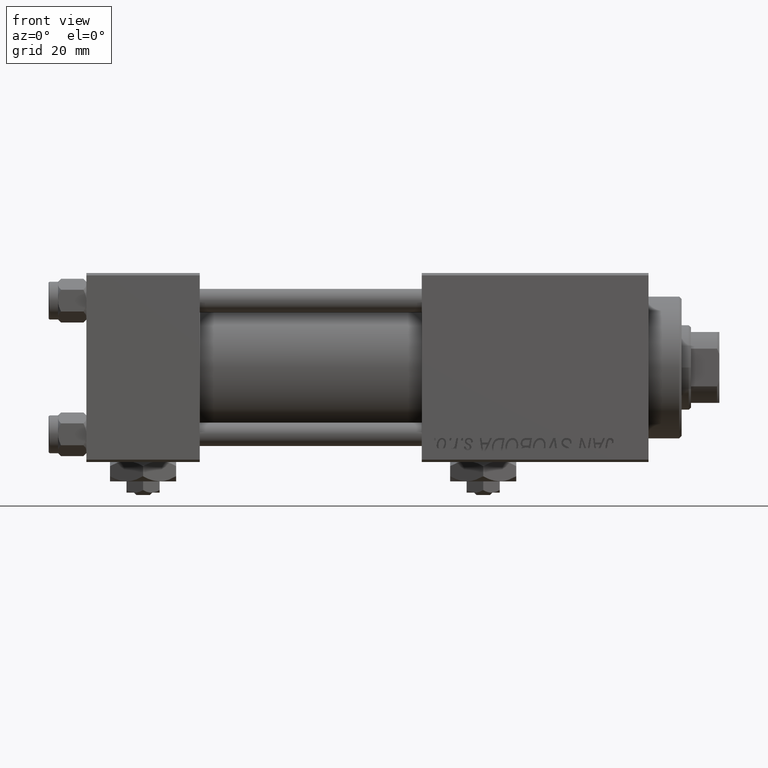
[diagram: clean part render]
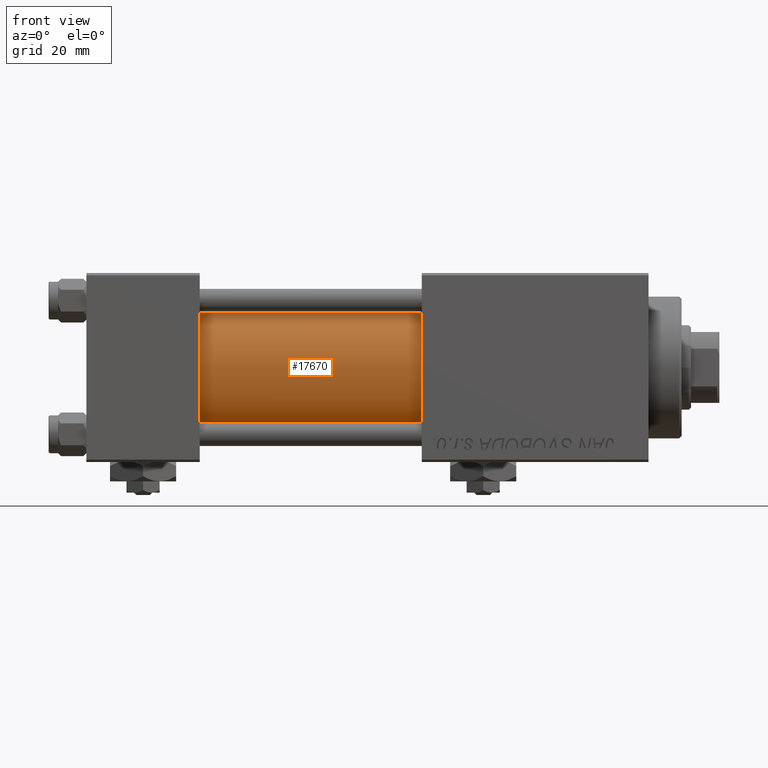
[diagram: same view with one face highlighted and labeled with its STEP entity id]
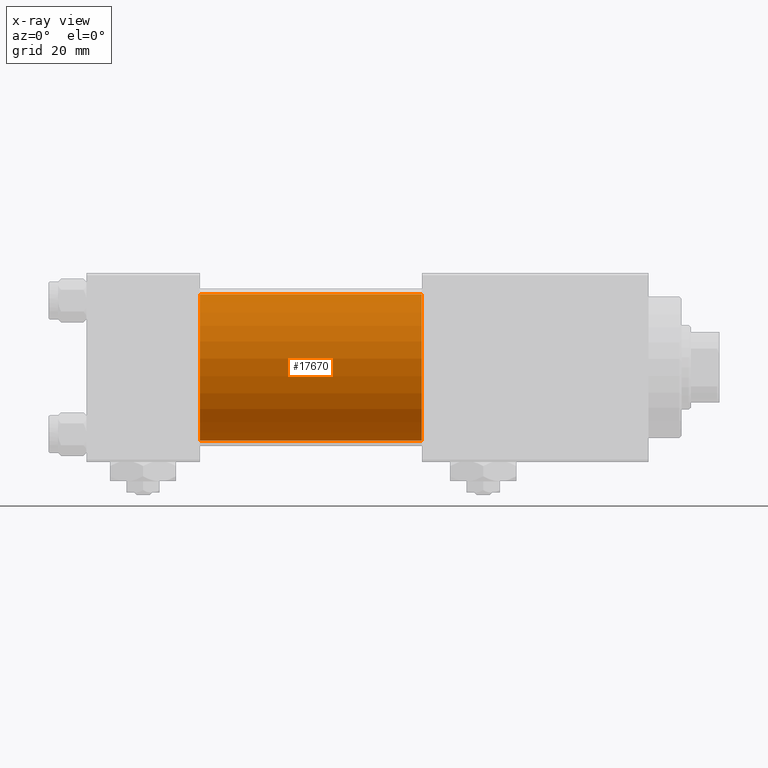
[diagram: x-ray of the same camera — body ghosted, the highlighted face saturated]
A machine part, front view. The second image highlights one B-rep face of the part: STEP entity #17670.
The next image is the same camera in x-ray: the body ghosted, the highlighted face saturated — about 0% of this face is hidden behind the body in this view.
In plain terms, the highlighted cylindrical surface (partial cylindrical patch) has radius 15.5 mm, axis along (-1, -0, -0).
Its self-contained STEP definition (entity closure, byte-faithful):
#1145 = ORIENTED_EDGE ( 'NONE', *, *, #51686, .F. ) ;
#2496 = EDGE_CURVE ( 'NONE', #47986, #29136, #9419, .T. ) ;
#4366 = AXIS2_PLACEMENT_3D ( 'NONE', #17956, #50679, #14753 ) ;
#5986 = DIRECTION ( 'NONE',  ( -1.000000000000000000, -0.000000000000000000, -0.000000000000000000 ) ) ;
#9419 = CIRCLE ( 'NONE', #4366, 15.50000000000000000 ) ;
#10221 = DIRECTION ( 'NONE',  ( 0.000000000000000000, 0.000000000000000000, -1.000000000000000000 ) ) ;
#10481 = CYLINDRICAL_SURFACE ( 'NONE', #40671, 15.50000000000000000 ) ;
#12245 = CARTESIAN_POINT ( 'NONE',  ( 24.00000000000000000, -7.038826752868131828E-16, -15.50000000000000000 ) ) ;
#14034 = CARTESIAN_POINT ( 'NONE',  ( 71.00000000000001421, -2.602085213965210642E-15, 15.50000000000000000 ) ) ;
#14183 = DIRECTION ( 'NONE',  ( 1.000000000000000000, 0.000000000000000000, 0.000000000000000000 ) ) ;
#14753 = DIRECTION ( 'NONE',  ( 0.000000000000000000, 0.000000000000000000, 1.000000000000000000 ) ) ;
#15231 = CARTESIAN_POINT ( 'NONE',  ( 71.00000000000001421, -2.602085213965210642E-15, 0.000000000000000000 ) ) ;
#17173 = ORIENTED_EDGE ( 'NONE', *, *, #50035, .F. ) ;
#17670 = ADVANCED_FACE ( 'NONE', ( #46666 ), #10481, .T. ) ;
#17956 = CARTESIAN_POINT ( 'NONE',  ( 24.00000000000000000, -2.602085213965210642E-15, 0.000000000000000000 ) ) ;
#18016 = CARTESIAN_POINT ( 'NONE',  ( 71.00000000000001421, -2.602085213965210642E-15, 15.50000000000000000 ) ) ;
#20432 = DIRECTION ( 'NONE',  ( -1.000000000000000000, -0.000000000000000000, -0.000000000000000000 ) ) ;
#20919 = VECTOR ( 'NONE', #42031, 1000.000000000000000 ) ;
#22727 = LINE ( 'NONE', #14034, #20919 ) ;
#24479 = AXIS2_PLACEMENT_3D ( 'NONE', #15231, #14183, #10221 ) ;
#24889 = CARTESIAN_POINT ( 'NONE',  ( 71.00000000000001421, -7.038826752868131828E-16, -15.50000000000000000 ) ) ;
#26584 = DIRECTION ( 'NONE',  ( 0.000000000000000000, 0.000000000000000000, 1.000000000000000000 ) ) ;
#26850 = CARTESIAN_POINT ( 'NONE',  ( 24.00000000000000000, -2.602085213965210642E-15, 15.50000000000000000 ) ) ;
#29136 = VERTEX_POINT ( 'NONE', #12245 ) ;
#30382 = CIRCLE ( 'NONE', #24479, 15.50000000000000000 ) ;
#33786 = VECTOR ( 'NONE', #20432, 1000.000000000000000 ) ;
#35464 = ORIENTED_EDGE ( 'NONE', *, *, #42362, .T. ) ;
#38744 = CARTESIAN_POINT ( 'NONE',  ( 71.00000000000001421, -2.602085213965210642E-15, 0.000000000000000000 ) ) ;
#40499 = LINE ( 'NONE', #24889, #33786 ) ;
#40671 = AXIS2_PLACEMENT_3D ( 'NONE', #38744, #5986, #26584 ) ;
#42031 = DIRECTION ( 'NONE',  ( -1.000000000000000000, -0.000000000000000000, -0.000000000000000000 ) ) ;
#42362 = EDGE_CURVE ( 'NONE', #49281, #47986, #22727, .T. ) ;
#44753 = ORIENTED_EDGE ( 'NONE', *, *, #2496, .T. ) ;
#45105 = VERTEX_POINT ( 'NONE', #52227 ) ;
#46666 = FACE_OUTER_BOUND ( 'NONE', #50523, .T. ) ;
#47986 = VERTEX_POINT ( 'NONE', #26850 ) ;
#49281 = VERTEX_POINT ( 'NONE', #18016 ) ;
#50035 = EDGE_CURVE ( 'NONE', #45105, #29136, #40499, .T. ) ;
#50523 = EDGE_LOOP ( 'NONE', ( #17173, #1145, #35464, #44753 ) ) ;
#50679 = DIRECTION ( 'NONE',  ( 1.000000000000000000, 0.000000000000000000, 0.000000000000000000 ) ) ;
#51686 = EDGE_CURVE ( 'NONE', #49281, #45105, #30382, .T. ) ;
#52227 = CARTESIAN_POINT ( 'NONE',  ( 71.00000000000001421, -7.038826752868131828E-16, -15.50000000000000000 ) ) ;